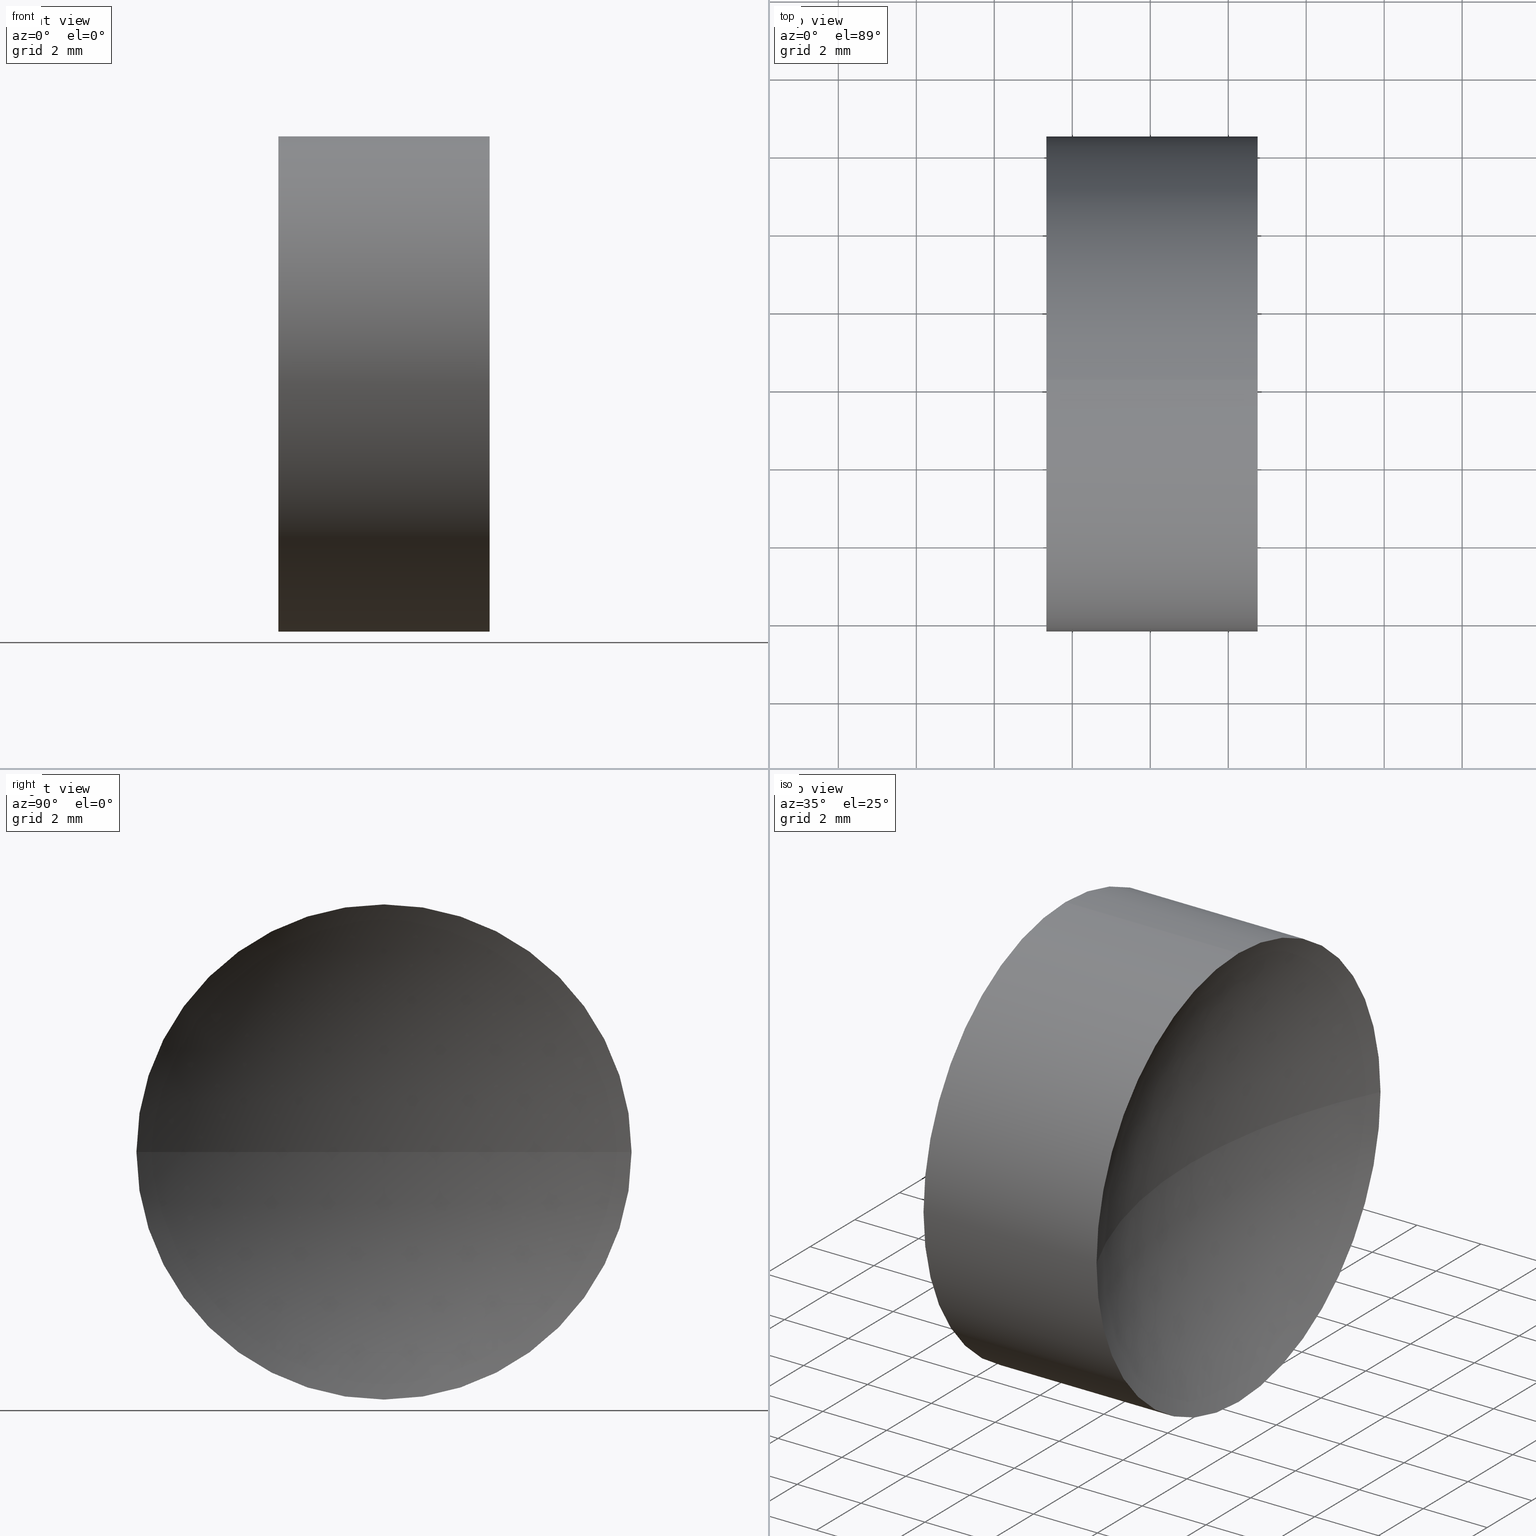
[diagram: canonical four-view strip — front | top / right | iso, engineering-drawing reading convention]
A machine part, canonical four-view strip (front | top / right | iso — engineering-drawing reading convention). The complete STEP part file that produces these views, byte-faithful:
ISO-10303-21;
HEADER;
FILE_DESCRIPTION (( 'STEP AP214' ),
    '1' );
FILE_NAME ('130055.STEP',
    '2019-07-02T05:37:02',
    ( '' ),
    ( '' ),
    'SwSTEP 2.0',
    'SolidWorks 2016',
    '' );
FILE_SCHEMA (( 'AUTOMOTIVE_DESIGN' ));
ENDSEC;

DATA;
#1 = PRESENTATION_STYLE_ASSIGNMENT (( #190 ) ) ;
#2 = ORIENTED_EDGE ( 'NONE', *, *, #211, .F. ) ;
#3 = AXIS2_PLACEMENT_3D ( 'NONE', #77, #135, #45 ) ;
#4 = CIRCLE ( 'NONE', #13, 6.349999999999997900 ) ;
#5 = EDGE_CURVE ( 'NONE', #101, #154, #141, .T. ) ;
#6 = DIRECTION ( 'NONE',  ( -1.000000000000000000, -0.0000000000000000000, -0.0000000000000000000 ) ) ;
#7 = SURFACE_STYLE_FILL_AREA ( #206 ) ;
#8 = DIRECTION ( 'NONE',  ( 0.0000000000000000000, 0.0000000000000000000, -1.000000000000000000 ) ) ;
#9 = ORIENTED_EDGE ( 'NONE', *, *, #227, .F. ) ;
#10 = PRODUCT_DEFINITION_SHAPE ( 'NONE', 'NONE',  #232 ) ;
#11 = DIRECTION ( 'NONE',  ( 0.0000000000000000000, 1.000000000000000000, 0.0000000000000000000 ) ) ;
#12 = DIRECTION ( 'NONE',  ( 0.0000000000000000000, 0.0000000000000000000, -1.000000000000000000 ) ) ;
#13 = AXIS2_PLACEMENT_3D ( 'NONE', #151, #107, #164 ) ;
#14 = ORIENTED_EDGE ( 'NONE', *, *, #103, .F. ) ;
#15 = CARTESIAN_POINT ( 'NONE',  ( 50.75364397030717400, 32.43904114919496400, 0.0000000000000000000 ) ) ;
#16 =( LENGTH_UNIT ( ) NAMED_UNIT ( * ) SI_UNIT ( .MILLI., .METRE. ) );
#17 = DIRECTION ( 'NONE',  ( 1.000000000000000000, 0.0000000000000000000, 0.0000000000000000000 ) ) ;
#18 = CIRCLE ( 'NONE', #230, 14.11999999999999400 ) ;
#19 = ORIENTED_EDGE ( 'NONE', *, *, #114, .T. ) ;
#20 = EDGE_CURVE ( 'NONE', #199, #101, #87, .T. ) ;
#21 = FACE_OUTER_BOUND ( 'NONE', #179, .T. ) ;
#22 = VERTEX_POINT ( 'NONE', #152 ) ;
#23 = APPLICATION_PROTOCOL_DEFINITION ( 'draft international standard', 'automotive_design', 1998, #136 ) ;
#24 = AXIS2_PLACEMENT_3D ( 'NONE', #78, #155, #226 ) ;
#25 = EDGE_CURVE ( 'NONE', #221, #160, #4, .T. ) ;
#26 = CARTESIAN_POINT ( 'NONE',  ( 32.72522198417998900, 26.08904114919495900, 0.0000000000000000000 ) ) ;
#27 = DIRECTION ( 'NONE',  ( 0.0000000000000000000, 0.0000000000000000000, -1.000000000000000000 ) ) ;
#28 = DIRECTION ( 'NONE',  ( 0.0000000000000000000, 0.0000000000000000000, 1.000000000000000000 ) ) ;
#29 = DIRECTION ( 'NONE',  ( 0.0000000000000000000, 1.000000000000000000, 1.224646799147353500E-016 ) ) ;
#30 = CARTESIAN_POINT ( 'NONE',  ( 45.33679999805279000, 26.08904114919495900, 0.0000000000000000000 ) ) ;
#31 = EDGE_LOOP ( 'NONE', ( #175, #83, #9, #98, #37, #213 ) ) ;
#32 = DIRECTION ( 'NONE',  ( -1.000000000000000000, -0.0000000000000000000, -0.0000000000000000000 ) ) ;
#33 = CARTESIAN_POINT ( 'NONE',  ( 50.75364397030717400, 19.73904114919495000, -7.776507174585700100E-016 ) ) ;
#34 = CIRCLE ( 'NONE', #44, 14.11999999999999000 ) ;
#35 = ORIENTED_EDGE ( 'NONE', *, *, #20, .T. ) ;
#36 = SPHERICAL_SURFACE ( 'NONE', #200, 14.11999999999999400 ) ;
#37 = ORIENTED_EDGE ( 'NONE', *, *, #114, .F. ) ;
#38 = VERTEX_POINT ( 'NONE', #41 ) ;
#39 = CARTESIAN_POINT ( 'NONE',  ( 42.44986111413682300, 26.08904114919495900, 6.349999999999997900 ) ) ;
#40 = CARTESIAN_POINT ( 'NONE',  ( 42.44986111413682300, 26.08904114919495900, -6.349999999999997900 ) ) ;
#41 = CARTESIAN_POINT ( 'NONE',  ( 49.24522198417997700, 26.08904114919495500, 0.0000000000000000000 ) ) ;
#42 = ADVANCED_BREP_SHAPE_REPRESENTATION ( '130055', ( #130, #178 ), #174 ) ;
#43 = ORIENTED_EDGE ( 'NONE', *, *, #180, .F. ) ;
#44 = AXIS2_PLACEMENT_3D ( 'NONE', #92, #109, #29 ) ;
#45 = DIRECTION ( 'NONE',  ( 0.0000000000000000000, 0.0000000000000000000, 1.000000000000000000 ) ) ;
#46 = CARTESIAN_POINT ( 'NONE',  ( 50.75364397030717400, 26.08904114919495900, 0.0000000000000000000 ) ) ;
#47 = ORIENTED_EDGE ( 'NONE', *, *, #165, .F. ) ;
#48 = FACE_OUTER_BOUND ( 'NONE', #31, .T. ) ;
#49 = ORIENTED_EDGE ( 'NONE', *, *, #219, .T. ) ;
#50 = APPLICATION_PROTOCOL_DEFINITION ( 'draft international standard', 'automotive_design', 1998, #139 ) ;
#51 = EDGE_LOOP ( 'NONE', ( #166, #52, #95, #49 ) ) ;
#52 = ORIENTED_EDGE ( 'NONE', *, *, #103, .T. ) ;
#53 = AXIS2_PLACEMENT_3D ( 'NONE', #58, #8, #148 ) ;
#54 = CARTESIAN_POINT ( 'NONE',  ( 32.72522198417998900, 26.08904114919495900, 0.0000000000000000000 ) ) ;
#55 = AXIS2_PLACEMENT_3D ( 'NONE', #76, #12, #169 ) ;
#56 = VERTEX_POINT ( 'NONE', #185 ) ;
#57 = ADVANCED_FACE ( 'NONE', ( #162 ), #214, .F. ) ;
#58 = CARTESIAN_POINT ( 'NONE',  ( 63.36522198417997500, 26.08904114919495500, 0.0000000000000000000 ) ) ;
#59 = DIRECTION ( 'NONE',  ( 0.0000000000000000000, 0.0000000000000000000, 1.000000000000000000 ) ) ;
#60 = AXIS2_PLACEMENT_3D ( 'NONE', #122, #147, #110 ) ;
#61 = ADVANCED_FACE ( 'NONE', ( #62 ), #67, .F. ) ;
#62 = FACE_OUTER_BOUND ( 'NONE', #51, .T. ) ;
#63 = CARTESIAN_POINT ( 'NONE',  ( 45.33679999805279000, 26.08904114919495900, 0.0000000000000000000 ) ) ;
#64 =( NAMED_UNIT ( * ) SI_UNIT ( $, .STERADIAN. ) SOLID_ANGLE_UNIT ( ) );
#65 = FILL_AREA_STYLE_COLOUR ( '', #118 ) ;
#66 =( LENGTH_UNIT ( ) NAMED_UNIT ( * ) SI_UNIT ( .MILLI., .METRE. ) );
#67 = SPHERICAL_SURFACE ( 'NONE', #168, 14.11999999999999400 ) ;
#68 = EDGE_LOOP ( 'NONE', ( #150, #143, #43, #201 ) ) ;
#69 = SURFACE_STYLE_FILL_AREA ( #140 ) ;
#70 = EDGE_CURVE ( 'NONE', #22, #56, #220, .T. ) ;
#71 = ORIENTED_EDGE ( 'NONE', *, *, #227, .T. ) ;
#72 = DIRECTION ( 'NONE',  ( -1.000000000000000000, -0.0000000000000000000, -0.0000000000000000000 ) ) ;
#73 = DIRECTION ( 'NONE',  ( 0.0000000000000000000, 1.000000000000000000, 0.0000000000000000000 ) ) ;
#74 = VERTEX_POINT ( 'NONE', #128 ) ;
#75 = ADVANCED_FACE ( 'NONE', ( #21 ), #36, .F. ) ;
#76 = CARTESIAN_POINT ( 'NONE',  ( 63.36522198417997500, 26.08904114919495500, 0.0000000000000000000 ) ) ;
#77 = CARTESIAN_POINT ( 'NONE',  ( 42.44986111413682300, 26.08904114919495900, 0.0000000000000000000 ) ) ;
#78 = CARTESIAN_POINT ( 'NONE',  ( 63.36522198417997500, 26.08904114919495500, 0.0000000000000000000 ) ) ;
#79 = DIRECTION ( 'NONE',  ( 0.0000000000000000000, 0.0000000000000000000, 1.000000000000000000 ) ) ;
#80 = DIRECTION ( 'NONE',  ( 0.0000000000000000000, 0.0000000000000000000, 1.000000000000000000 ) ) ;
#81 =( NAMED_UNIT ( * ) SI_UNIT ( $, .STERADIAN. ) SOLID_ANGLE_UNIT ( ) );
#82 = PRESENTATION_STYLE_ASSIGNMENT (( #194 ) ) ;
#83 = ORIENTED_EDGE ( 'NONE', *, *, #70, .T. ) ;
#84 = CIRCLE ( 'NONE', #184, 6.349999999999997900 ) ;
#85 = VERTEX_POINT ( 'NONE', #121 ) ;
#86 = UNCERTAINTY_MEASURE_WITH_UNIT (LENGTH_MEASURE( 1.000000000000000100E-005 ), #94, 'distance_accuracy_value', 'NONE');
#87 = CIRCLE ( 'NONE', #216, 6.350000000000005000 ) ;
#88 = DIRECTION ( 'NONE',  ( -1.000000000000000000, -0.0000000000000000000, -0.0000000000000000000 ) ) ;
#89 = CARTESIAN_POINT ( 'NONE',  ( 50.75364397030717400, 26.08904114919495900, 0.0000000000000000000 ) ) ;
#90 = VECTOR ( 'NONE', #88, 1000.000000000000000 ) ;
#91 = ORIENTED_EDGE ( 'NONE', *, *, #137, .T. ) ;
#92 = CARTESIAN_POINT ( 'NONE',  ( 32.72522198417998900, 26.08904114919495900, 0.0000000000000000000 ) ) ;
#93 = CARTESIAN_POINT ( 'NONE',  ( 63.36522198417997500, 26.08904114919495500, 0.0000000000000000000 ) ) ;
#94 =( LENGTH_UNIT ( ) NAMED_UNIT ( * ) SI_UNIT ( .MILLI., .METRE. ) );
#95 = ORIENTED_EDGE ( 'NONE', *, *, #25, .T. ) ;
#96 = DIRECTION ( 'NONE',  ( -1.000000000000000000, -0.0000000000000000000, -0.0000000000000000000 ) ) ;
#97 = DIRECTION ( 'NONE',  ( 0.0000000000000000000, 1.224646799147353200E-016, -1.000000000000000000 ) ) ;
#98 = ORIENTED_EDGE ( 'NONE', *, *, #219, .F. ) ;
#99 = STYLED_ITEM ( 'NONE', ( #82 ), #42 ) ;
#100 = CIRCLE ( 'NONE', #170, 6.350000000000005000 ) ;
#101 = VERTEX_POINT ( 'NONE', #126 ) ;
#102 = FACE_OUTER_BOUND ( 'NONE', #120, .T. ) ;
#103 = EDGE_CURVE ( 'NONE', #74, #221, #34, .T. ) ;
#104 = FACE_OUTER_BOUND ( 'NONE', #215, .T. ) ;
#105 = AXIS2_PLACEMENT_3D ( 'NONE', #111, #171, #208 ) ;
#106 = ORIENTED_EDGE ( 'NONE', *, *, #108, .F. ) ;
#107 = DIRECTION ( 'NONE',  ( -1.000000000000000000, -0.0000000000000000000, -0.0000000000000000000 ) ) ;
#108 = EDGE_CURVE ( 'NONE', #154, #22, #142, .T. ) ;
#109 = DIRECTION ( 'NONE',  ( 0.0000000000000000000, 1.224646799147353200E-016, -1.000000000000000000 ) ) ;
#110 = DIRECTION ( 'NONE',  ( 1.000000000000000000, 0.0000000000000000000, 0.0000000000000000000 ) ) ;
#111 = CARTESIAN_POINT ( 'NONE',  ( 42.44986111413682300, 26.08904114919495900, 0.0000000000000000000 ) ) ;
#112 = DIRECTION ( 'NONE',  ( -1.000000000000000000, -0.0000000000000000000, -0.0000000000000000000 ) ) ;
#113 = CYLINDRICAL_SURFACE ( 'NONE', #3, 6.349999999999997900 ) ;
#114 = EDGE_CURVE ( 'NONE', #101, #160, #115, .T. ) ;
#115 = LINE ( 'NONE', #39, #90 ) ;
#116 = ORIENTED_EDGE ( 'NONE', *, *, #180, .T. ) ;
#117 = MECHANICAL_DESIGN_GEOMETRIC_PRESENTATION_REPRESENTATION (  '', ( #99 ), #197 ) ;
#118 = COLOUR_RGB ( '',1.000000000000000000, 1.000000000000000000, 1.000000000000000000 ) ;
#119 = EDGE_CURVE ( 'NONE', #74, #85, #198, .T. ) ;
#120 = EDGE_LOOP ( 'NONE', ( #47, #205, #106, #116 ) ) ;
#121 = CARTESIAN_POINT ( 'NONE',  ( 45.33679999805279000, 32.43904114919494900, 0.0000000000000000000 ) ) ;
#122 = CARTESIAN_POINT ( 'NONE',  ( 32.72522198417998900, 26.08904114919495900, 0.0000000000000000000 ) ) ;
#123 = PRODUCT_DEFINITION_CONTEXT ( 'detailed design', #139, 'design' ) ;
#124 = DIRECTION ( 'NONE',  ( 0.0000000000000000000, 0.0000000000000000000, 1.000000000000000000 ) ) ;
#125 = PRESENTATION_LAYER_ASSIGNMENT (  '', '', ( #153 ) ) ;
#126 = CARTESIAN_POINT ( 'NONE',  ( 50.75364397030717400, 26.08904114919495900, 6.350000000000005000 ) ) ;
#127 = CIRCLE ( 'NONE', #196, 6.349999999999997900 ) ;
#128 = CARTESIAN_POINT ( 'NONE',  ( 46.84522198417997900, 26.08904114919495900, 0.0000000000000000000 ) ) ;
#129 = ORIENTED_EDGE ( 'NONE', *, *, #211, .T. ) ;
#130 = MANIFOLD_SOLID_BREP ( '��ת1', #231 ) ;
#131 = CARTESIAN_POINT ( 'NONE',  ( 0.0000000000000000000, 0.0000000000000000000, 0.0000000000000000000 ) ) ;
#132 = ADVANCED_FACE ( 'NONE', ( #104 ), #113, .T. ) ;
#133 = MECHANICAL_DESIGN_GEOMETRIC_PRESENTATION_REPRESENTATION (  '', ( #153 ), #223 ) ;
#134 = CARTESIAN_POINT ( 'NONE',  ( 45.33679999805279000, 26.08904114919495900, 6.349999999999997900 ) ) ;
#135 = DIRECTION ( 'NONE',  ( -1.000000000000000000, -0.0000000000000000000, -0.0000000000000000000 ) ) ;
#136 = APPLICATION_CONTEXT ( 'automotive_design' ) ;
#137 = EDGE_CURVE ( 'NONE', #22, #199, #100, .T. ) ;
#138 = PRODUCT_RELATED_PRODUCT_CATEGORY ( 'part', '', ( #172 ) ) ;
#139 = APPLICATION_CONTEXT ( 'automotive_design' ) ;
#140 = FILL_AREA_STYLE ('',( #65 ) ) ;
#141 = CIRCLE ( 'NONE', #159, 6.350000000000005000 ) ;
#142 = CIRCLE ( 'NONE', #144, 6.350000000000005000 ) ;
#143 = ORIENTED_EDGE ( 'NONE', *, *, #165, .T. ) ;
#144 = AXIS2_PLACEMENT_3D ( 'NONE', #163, #6, #146 ) ;
#145 = ORIENTED_EDGE ( 'NONE', *, *, #25, .F. ) ;
#146 = DIRECTION ( 'NONE',  ( 0.0000000000000000000, 0.0000000000000000000, 1.000000000000000000 ) ) ;
#147 = DIRECTION ( 'NONE',  ( 0.0000000000000000000, 0.0000000000000000000, 1.000000000000000000 ) ) ;
#148 = DIRECTION ( 'NONE',  ( 0.0000000000000000000, 1.000000000000000000, 0.0000000000000000000 ) ) ;
#149 = CIRCLE ( 'NONE', #24, 14.11999999999999400 ) ;
#150 = ORIENTED_EDGE ( 'NONE', *, *, #20, .F. ) ;
#151 = CARTESIAN_POINT ( 'NONE',  ( 45.33679999805279000, 26.08904114919495900, 0.0000000000000000000 ) ) ;
#152 = CARTESIAN_POINT ( 'NONE',  ( 50.75364397030717400, 26.08904114919495900, -6.350000000000005000 ) ) ;
#153 = STYLED_ITEM ( 'NONE', ( #1 ), #130 ) ;
#154 = VERTEX_POINT ( 'NONE', #15 ) ;
#155 = DIRECTION ( 'NONE',  ( 0.0000000000000000000, 0.0000000000000000000, 1.000000000000000000 ) ) ;
#156 = DIRECTION ( 'NONE',  ( -1.000000000000000000, -0.0000000000000000000, -0.0000000000000000000 ) ) ;
#157 = VECTOR ( 'NONE', #217, 1000.000000000000000 ) ;
#158 = PRODUCT_CONTEXT ( 'NONE', #136, 'mechanical' ) ;
#159 = AXIS2_PLACEMENT_3D ( 'NONE', #161, #72, #28 ) ;
#160 = VERTEX_POINT ( 'NONE', #134 ) ;
#161 = CARTESIAN_POINT ( 'NONE',  ( 50.75364397030717400, 26.08904114919495900, 0.0000000000000000000 ) ) ;
#162 = FACE_OUTER_BOUND ( 'NONE', #68, .T. ) ;
#163 = CARTESIAN_POINT ( 'NONE',  ( 50.75364397030717400, 26.08904114919495900, 0.0000000000000000000 ) ) ;
#164 = DIRECTION ( 'NONE',  ( 0.0000000000000000000, 0.0000000000000000000, 1.000000000000000000 ) ) ;
#165 = EDGE_CURVE ( 'NONE', #199, #38, #18, .T. ) ;
#166 = ORIENTED_EDGE ( 'NONE', *, *, #119, .F. ) ;
#167 = DIRECTION ( 'NONE',  ( 0.0000000000000000000, 0.0000000000000000000, 1.000000000000000000 ) ) ;
#168 = AXIS2_PLACEMENT_3D ( 'NONE', #54, #187, #11 ) ;
#169 = DIRECTION ( 'NONE',  ( 0.0000000000000000000, 1.000000000000000000, 0.0000000000000000000 ) ) ;
#170 = AXIS2_PLACEMENT_3D ( 'NONE', #46, #96, #167 ) ;
#171 = DIRECTION ( 'NONE',  ( -1.000000000000000000, -0.0000000000000000000, -0.0000000000000000000 ) ) ;
#172 = PRODUCT ( '130055', '130055', '', ( #158 ) ) ;
#173 = SPHERICAL_SURFACE ( 'NONE', #55, 14.11999999999999400 ) ;
#174 =( GEOMETRIC_REPRESENTATION_CONTEXT ( 3 ) GLOBAL_UNCERTAINTY_ASSIGNED_CONTEXT ( ( #186 ) ) GLOBAL_UNIT_ASSIGNED_CONTEXT ( ( #16, #224, #64 ) ) REPRESENTATION_CONTEXT ( 'NONE', 'WORKASPACE' ) );
#175 = ORIENTED_EDGE ( 'NONE', *, *, #108, .T. ) ;
#176 = SURFACE_SIDE_STYLE ('',( #69 ) ) ;
#177 =( NAMED_UNIT ( * ) PLANE_ANGLE_UNIT ( ) SI_UNIT ( $, .RADIAN. ) );
#178 = AXIS2_PLACEMENT_3D ( 'NONE', #131, #80, #17 ) ;
#179 = EDGE_LOOP ( 'NONE', ( #14, #182, #71, #129 ) ) ;
#180 = EDGE_CURVE ( 'NONE', #154, #38, #149, .T. ) ;
#181 = PRODUCT_DEFINITION_FORMATION_WITH_SPECIFIED_SOURCE ( '�κ�', '', #172, .NOT_KNOWN. ) ;
#182 = ORIENTED_EDGE ( 'NONE', *, *, #119, .T. ) ;
#183 = FILL_AREA_STYLE_COLOUR ( '', #228 ) ;
#184 = AXIS2_PLACEMENT_3D ( 'NONE', #63, #112, #59 ) ;
#185 = CARTESIAN_POINT ( 'NONE',  ( 45.33679999805279000, 26.08904114919495900, -6.349999999999997900 ) ) ;
#186 = UNCERTAINTY_MEASURE_WITH_UNIT (LENGTH_MEASURE( 1.000000000000000100E-005 ), #16, 'distance_accuracy_value', 'NONE');
#187 = DIRECTION ( 'NONE',  ( 0.0000000000000000000, 0.0000000000000000000, -1.000000000000000000 ) ) ;
#188 = CARTESIAN_POINT ( 'NONE',  ( 45.33679999805279000, 19.73904114919496100, -7.776507174585688200E-016 ) ) ;
#189 = ADVANCED_FACE ( 'NONE', ( #102 ), #173, .F. ) ;
#190 = SURFACE_STYLE_USAGE ( .BOTH. , #222 ) ;
#191 = DIRECTION ( 'NONE',  ( 0.0000000000000000000, 1.000000000000000000, 1.224646799147353200E-016 ) ) ;
#192 =( NAMED_UNIT ( * ) PLANE_ANGLE_UNIT ( ) SI_UNIT ( $, .RADIAN. ) );
#193 = CARTESIAN_POINT ( 'NONE',  ( 45.33679999805279000, 26.08904114919495900, 0.0000000000000000000 ) ) ;
#194 = SURFACE_STYLE_USAGE ( .BOTH. , #176 ) ;
#195 = SHAPE_DEFINITION_REPRESENTATION ( #10, #42 ) ;
#196 = AXIS2_PLACEMENT_3D ( 'NONE', #30, #156, #79 ) ;
#197 =( GEOMETRIC_REPRESENTATION_CONTEXT ( 3 ) GLOBAL_UNCERTAINTY_ASSIGNED_CONTEXT ( ( #210 ) ) GLOBAL_UNIT_ASSIGNED_CONTEXT ( ( #66, #177, #81 ) ) REPRESENTATION_CONTEXT ( 'NONE', 'WORKASPACE' ) );
#198 = CIRCLE ( 'NONE', #60, 14.11999999999999400 ) ;
#199 = VERTEX_POINT ( 'NONE', #33 ) ;
#200 = AXIS2_PLACEMENT_3D ( 'NONE', #26, #27, #73 ) ;
#201 = ORIENTED_EDGE ( 'NONE', *, *, #5, .F. ) ;
#202 = DIRECTION ( 'NONE',  ( -1.000000000000000000, -0.0000000000000000000, -0.0000000000000000000 ) ) ;
#203 = DIRECTION ( 'NONE',  ( 0.0000000000000000000, 0.0000000000000000000, 1.000000000000000000 ) ) ;
#204 = ADVANCED_FACE ( 'NONE', ( #48 ), #209, .T. ) ;
#205 = ORIENTED_EDGE ( 'NONE', *, *, #137, .F. ) ;
#206 = FILL_AREA_STYLE ('',( #183 ) ) ;
#207 = AXIS2_PLACEMENT_3D ( 'NONE', #193, #32, #203 ) ;
#208 = DIRECTION ( 'NONE',  ( 0.0000000000000000000, 0.0000000000000000000, 1.000000000000000000 ) ) ;
#209 = CYLINDRICAL_SURFACE ( 'NONE', #105, 6.349999999999997900 ) ;
#210 = UNCERTAINTY_MEASURE_WITH_UNIT (LENGTH_MEASURE( 1.000000000000000100E-005 ), #66, 'distance_accuracy_value', 'NONE');
#211 = EDGE_CURVE ( 'NONE', #56, #221, #127, .T. ) ;
#212 = CIRCLE ( 'NONE', #207, 6.349999999999997900 ) ;
#213 = ORIENTED_EDGE ( 'NONE', *, *, #5, .T. ) ;
#214 = SPHERICAL_SURFACE ( 'NONE', #53, 14.11999999999999400 ) ;
#215 = EDGE_LOOP ( 'NONE', ( #229, #91, #35, #19, #145, #2 ) ) ;
#216 = AXIS2_PLACEMENT_3D ( 'NONE', #89, #202, #124 ) ;
#217 = DIRECTION ( 'NONE',  ( -1.000000000000000000, -0.0000000000000000000, -0.0000000000000000000 ) ) ;
#218 = PRESENTATION_LAYER_ASSIGNMENT (  '', '', ( #99 ) ) ;
#219 = EDGE_CURVE ( 'NONE', #160, #85, #84, .T. ) ;
#220 = LINE ( 'NONE', #40, #157 ) ;
#221 = VERTEX_POINT ( 'NONE', #188 ) ;
#222 = SURFACE_SIDE_STYLE ('',( #7 ) ) ;
#223 =( GEOMETRIC_REPRESENTATION_CONTEXT ( 3 ) GLOBAL_UNCERTAINTY_ASSIGNED_CONTEXT ( ( #86 ) ) GLOBAL_UNIT_ASSIGNED_CONTEXT ( ( #94, #192, #225 ) ) REPRESENTATION_CONTEXT ( 'NONE', 'WORKASPACE' ) );
#224 =( NAMED_UNIT ( * ) PLANE_ANGLE_UNIT ( ) SI_UNIT ( $, .RADIAN. ) );
#225 =( NAMED_UNIT ( * ) SI_UNIT ( $, .STERADIAN. ) SOLID_ANGLE_UNIT ( ) );
#226 = DIRECTION ( 'NONE',  ( 1.000000000000000000, 0.0000000000000000000, 0.0000000000000000000 ) ) ;
#227 = EDGE_CURVE ( 'NONE', #85, #56, #212, .T. ) ;
#228 = COLOUR_RGB ( '',1.000000000000000000, 1.000000000000000000, 1.000000000000000000 ) ;
#229 = ORIENTED_EDGE ( 'NONE', *, *, #70, .F. ) ;
#230 = AXIS2_PLACEMENT_3D ( 'NONE', #93, #97, #191 ) ;
#231 = CLOSED_SHELL ( 'NONE', ( #204, #57, #61, #75, #189, #132 ) ) ;
#232 = PRODUCT_DEFINITION ( 'δ֪', '', #181, #123 ) ;
ENDSEC;
END-ISO-10303-21;
